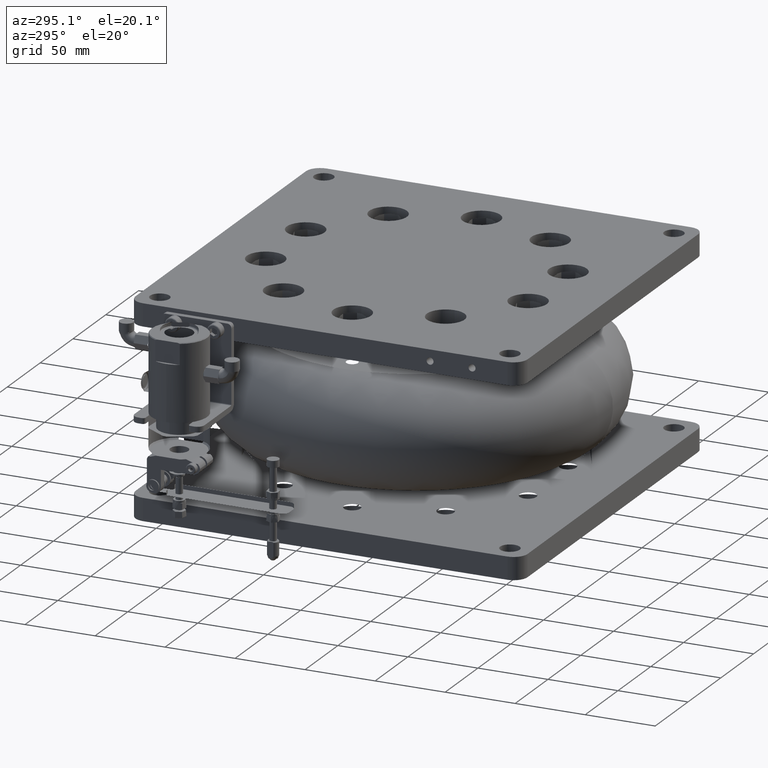
[diagram: clean part render]
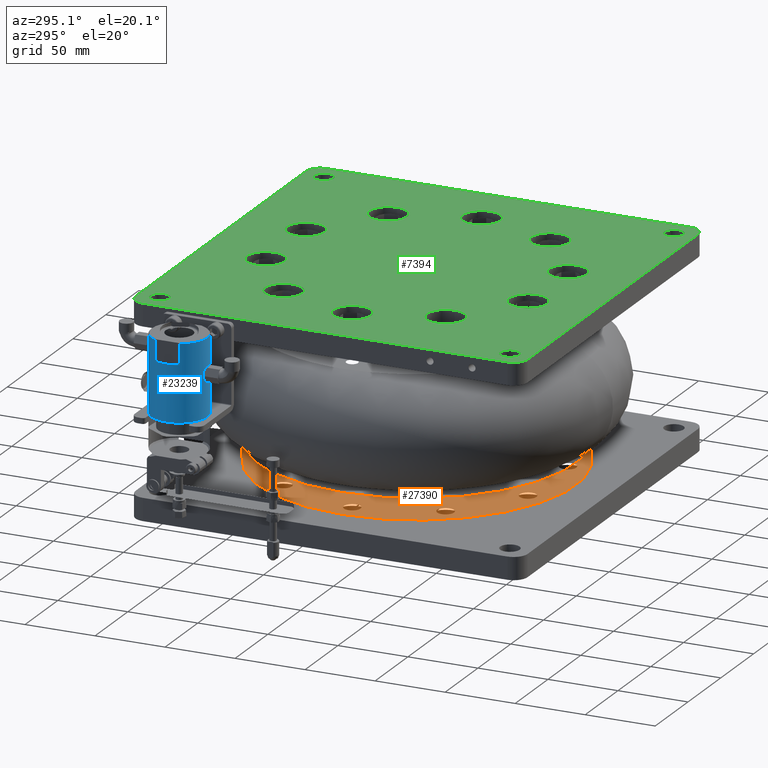
[diagram: same view with three faces highlighted in distinct colors, each labeled with its STEP entity id]
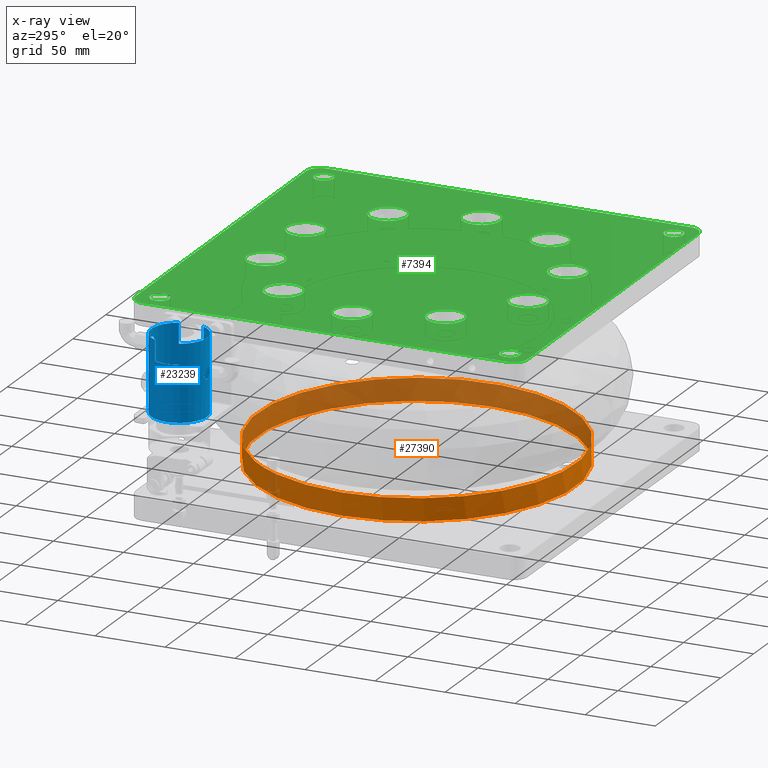
[diagram: x-ray of the same camera — body ghosted, the three highlighted faces saturated]
A machine part, auxiliary view with three faces highlighted in distinct colors.
The next image is the same camera in x-ray (body ghosted, the three faces saturated) — at least one of them is partly hidden behind the body in this view.
Their STEP definitions:

[orange] entity #27390 — the highlighted cylindrical surface (bore or boss wall) has radius 113.5 mm, axis along (0, 0, -1).
#1918 = DIRECTION ( 'NONE',  ( -0.000000000000000000, -0.000000000000000000, 1.000000000000000000 ) ) ;
#3515 = EDGE_CURVE ( 'NONE', #32840, #32840, #19610, .T. ) ;
#5613 = DIRECTION ( 'NONE',  ( 0.000000000000000000, 0.000000000000000000, -1.000000000000000000 ) ) ;
#5970 = DIRECTION ( 'NONE',  ( 0.9510565162951544194, -0.3090169943749448422, 0.000000000000000000 ) ) ;
#7050 = CIRCLE ( 'NONE', #21599, 113.5000000000000142 ) ;
#7877 = AXIS2_PLACEMENT_3D ( 'NONE', #11951, #5613, #21247 ) ;
#8886 = ORIENTED_EDGE ( 'NONE', *, *, #17937, .F. ) ;
#11951 = CARTESIAN_POINT ( 'NONE',  ( 129.3094785136836435, -25.54586439068455661, 103.0000000000000284 ) ) ;
#13182 = VERTEX_POINT ( 'NONE', #28000 ) ;
#14883 = CARTESIAN_POINT ( 'NONE',  ( 129.3094785136836435, -25.54586439068455661, 120.0000000000000284 ) ) ;
#15252 = EDGE_LOOP ( 'NONE', ( #8886 ) ) ;
#17937 = EDGE_CURVE ( 'NONE', #13182, #13182, #7050, .T. ) ;
#18237 = CARTESIAN_POINT ( 'NONE',  ( 237.2543931131836530, -60.61929325224079435, 120.0000000000000284 ) ) ;
#19311 = CARTESIAN_POINT ( 'NONE',  ( 129.3094785136836435, -25.54586439068455661, 104.0000000000000284 ) ) ;
#19523 = ORIENTED_EDGE ( 'NONE', *, *, #3515, .T. ) ;
#19610 = CIRCLE ( 'NONE', #20893, 113.4999999999999858 ) ;
#20842 = FACE_OUTER_BOUND ( 'NONE', #15252, .T. ) ;
#20893 = AXIS2_PLACEMENT_3D ( 'NONE', #14883, #23971, #5970 ) ;
#21247 = DIRECTION ( 'NONE',  ( -1.000000000000000000, 0.000000000000000000, 0.000000000000000000 ) ) ;
#21599 = AXIS2_PLACEMENT_3D ( 'NONE', #19311, #1918, #38052 ) ;
#23629 = FACE_OUTER_BOUND ( 'NONE', #35149, .T. ) ;
#23971 = DIRECTION ( 'NONE',  ( -0.000000000000000000, -0.000000000000000000, 1.000000000000000000 ) ) ;
#27359 = CYLINDRICAL_SURFACE ( 'NONE', #7877, 113.5000000000000142 ) ;
#27390 = ADVANCED_FACE ( 'NONE', ( #23629, #20842 ), #27359, .F. ) ;
#28000 = CARTESIAN_POINT ( 'NONE',  ( 15.80947851368363999, -25.54586439068455661, 104.0000000000000284 ) ) ;
#32840 = VERTEX_POINT ( 'NONE', #18237 ) ;
#35149 = EDGE_LOOP ( 'NONE', ( #19523 ) ) ;
#38052 = DIRECTION ( 'NONE',  ( -1.000000000000000000, 0.000000000000000000, 0.000000000000000000 ) ) ;

[blue] entity #23239 — the highlighted cylindrical surface (bore or boss wall) has radius 20 mm, axis along (0, -0, -1).
#246 = AXIS2_PLACEMENT_3D ( 'NONE', #25185, #9971, #22029 ) ;
#378 = CARTESIAN_POINT ( 'NONE',  ( -42.71337636090161283, 84.35763767239627953, 201.4913226597844869 ) ) ;
#412 = CARTESIAN_POINT ( 'NONE',  ( -41.73364057912300495, 44.47528561621077614, 213.8980328944192593 ) ) ;
#524 = EDGE_CURVE ( 'NONE', #33986, #35339, #31757, .T. ) ;
#538 = CARTESIAN_POINT ( 'NONE',  ( -37.10326381478301982, 84.12989397782691015, 223.2250549149215431 ) ) ;
#546 = CARTESIAN_POINT ( 'NONE',  ( -58.69052148631766386, 55.73633772223320193, 219.9999999999999147 ) ) ;
#615 = CARTESIAN_POINT ( 'NONE',  ( -22.69052148631745069, 73.17193349639590849, 157.5000000000000284 ) ) ;
#636 = CARTESIAN_POINT ( 'NONE',  ( -37.48933558587368964, 44.70836629881532076, 207.5439201609184181 ) ) ;
#690 = AXIS2_PLACEMENT_3D ( 'NONE', #27315, #18037, #32641 ) ;
#727 = CARTESIAN_POINT ( 'NONE',  ( -38.66801867560538852, 84.35765403367744852, 221.5085983921672437 ) ) ;
#792 = LINE ( 'NONE', #25288, #34024 ) ;
#926 = CARTESIAN_POINT ( 'NONE',  ( -39.64607603804890346, 84.43286672502566148, 221.1026379509864057 ) ) ;
#987 = CARTESIAN_POINT ( 'NONE',  ( -44.48620129118064170, 44.81734815125982863, 211.2893865447701103 ) ) ;
#1143 = CARTESIAN_POINT ( 'NONE',  ( -38.23845561644019142, 84.30685130851814790, 201.2042484459634295 ) ) ;
#1173 = CARTESIAN_POINT ( 'NONE',  ( -44.18254971368274653, 44.76027447761348554, 212.0210653916043384 ) ) ;
#1297 = EDGE_CURVE ( 'NONE', #10258, #32994, #24511, .T. ) ;
#1298 = CARTESIAN_POINT ( 'NONE',  ( -39.64917193793936434, 84.43305981090807677, 228.8983783140780588 ) ) ;
#1333 = CARTESIAN_POINT ( 'NONE',  ( -39.64917193793927908, 84.43305981090811940, 201.8983783140781725 ) ) ;
#1531 = ORIENTED_EDGE ( 'NONE', *, *, #10149, .T. ) ;
#1843 = ORIENTED_EDGE ( 'NONE', *, *, #2897, .T. ) ;
#1945 = CARTESIAN_POINT ( 'NONE',  ( -44.16203410019185327, 84.15108942877451170, 227.0055370506561871 ) ) ;
#2250 = ORIENTED_EDGE ( 'NONE', *, *, #524, .T. ) ;
#2274 = CARTESIAN_POINT ( 'NONE',  ( -44.16203410032265708, 84.15108942875143327, 200.0055370503409051 ) ) ;
#2341 = CARTESIAN_POINT ( 'NONE',  ( -41.22135841402613465, 84.45413560931457653, 229.0000000000000000 ) ) ;
#2362 = ORIENTED_EDGE ( 'NONE', *, *, #33543, .T. ) ;
#2546 = CARTESIAN_POINT ( 'NONE',  ( -58.69052148631744359, 73.17193349639589428, 157.4999999999999147 ) ) ;
#2897 = EDGE_CURVE ( 'NONE', #32994, #10258, #18342, .T. ) ;
#3129 = DIRECTION ( 'NONE',  ( 3.469444919707227814E-15, -2.220330437182259400E-16, -1.000000000000000000 ) ) ;
#3214 = CARTESIAN_POINT ( 'NONE',  ( -38.23515705704751610, 44.60181591404385415, 213.2019635833644315 ) ) ;
#3535 = CIRCLE ( 'NONE', #21826, 20.00000000000000355 ) ;
#3561 = CARTESIAN_POINT ( 'NONE',  ( -43.14543671670587344, 44.60177319728560263, 213.2021359408311412 ) ) ;
#3602 = CARTESIAN_POINT ( 'NONE',  ( -36.81825259943586559, 44.83250867268627360, 208.9610086763633490 ) ) ;
#3717 = CARTESIAN_POINT ( 'NONE',  ( -37.20021757840715537, 84.14830757915848380, 200.0241061444475008 ) ) ;
#3784 = EDGE_CURVE ( 'NONE', #14982, #15611, #12690, .T. ) ;
#3791 = CARTESIAN_POINT ( 'NONE',  ( -36.71616067848623288, 44.85293242834364236, 209.4722138257197059 ) ) ;
#3829 = EDGE_LOOP ( 'NONE', ( #11956, #1531, #2250, #32924, #24767, #2362, #19935, #10268 ) ) ;
#4080 = CARTESIAN_POINT ( 'NONE',  ( -37.67473584518334206, 84.22636126847217497, 222.3589091284750623 ) ) ;
#4143 = EDGE_CURVE ( 'NONE', #9349, #9349, #29087, .T. ) ;
#4145 = CARTESIAN_POINT ( 'NONE',  ( -43.70662083835317446, 44.68195377362756915, 207.3592092873595618 ) ) ;
#4147 = AXIS2_PLACEMENT_3D ( 'NONE', #33202, #5753, #15443 ) ;
#4299 = CARTESIAN_POINT ( 'NONE',  ( -37.67473584516244500, 84.22636126846923332, 195.3589091285715256 ) ) ;
#4797 = CIRCLE ( 'NONE', #4147, 20.00000000000000355 ) ;
#5291 = CARTESIAN_POINT ( 'NONE',  ( -44.58932011067977896, 84.07153183535000096, 226.0401647774155549 ) ) ;
#5528 = CARTESIAN_POINT ( 'NONE',  ( -58.69052148631766386, 73.17193349639590849, 219.9999999999999147 ) ) ;
#5611 = FACE_BOUND ( 'NONE', #23470, .T. ) ;
#5708 = DIRECTION ( 'NONE',  ( 3.469444919707227814E-15, -2.220330437182259400E-16, -1.000000000000000000 ) ) ;
#5753 = DIRECTION ( 'NONE',  ( 3.469444919707227814E-15, -2.220330437182259400E-16, -1.000000000000000000 ) ) ;
#6365 = CARTESIAN_POINT ( 'NONE',  ( -39.65069980202030564, 44.47953890953028377, 213.8720656649474563 ) ) ;
#6564 = CARTESIAN_POINT ( 'NONE',  ( -37.67282742583950039, 44.68220157396295633, 212.6389215424405847 ) ) ;
#6586 = EDGE_CURVE ( 'NONE', #22090, #7744, #24835, .T. ) ;
#6682 = CARTESIAN_POINT ( 'NONE',  ( -39.64607603858669194, 84.43286672506701507, 194.1026379506031958 ) ) ;
#6751 = CARTESIAN_POINT ( 'NONE',  ( -40.42438021095235712, 44.45413560931454811, 213.9999999999999147 ) ) ;
#6864 = CARTESIAN_POINT ( 'NONE',  ( -37.48987590438031248, 84.19999126366515441, 200.4567455694477474 ) ) ;
#6937 = CARTESIAN_POINT ( 'NONE',  ( -40.16311186553538448, 44.45944677587495875, 213.9744131329894117 ) ) ;
#7229 = CARTESIAN_POINT ( 'NONE',  ( -36.89583493720115115, 84.09111632761188559, 226.2923317394119920 ) ) ;
#7263 = CARTESIAN_POINT ( 'NONE',  ( -36.69024821162919636, 84.04999776963018121, 197.4719379265742418 ) ) ;
#7744 = VERTEX_POINT ( 'NONE', #15315 ) ;
#7872 = CARTESIAN_POINT ( 'NONE',  ( -44.28410774128209937, 84.12891271551781358, 226.7767221311450498 ) ) ;
#8086 = CARTESIAN_POINT ( 'NONE',  ( -40.69052148631767096, 84.45413560931456232, 220.9999999999999432 ) ) ;
#8129 = EDGE_LOOP ( 'NONE', ( #9129, #29813 ) ) ;
#8395 = FACE_BOUND ( 'NONE', #14842, .T. ) ;
#8674 = B_SPLINE_CURVE_WITH_KNOTS ( 'NONE', 3,
 ( #36924, #33377, #31003, #18388, #30625, #4145, #33579, #24523, #16004, #15622, #28243, #30432, #28059, #15430, #987, #1173, #13052, #3561, #27660, #412, #24712, #36737 ),
 .UNSPECIFIED., .F., .F.,
 ( 4, 2, 2, 2, 2, 2, 2, 2, 2, 2, 4 ),
 ( 0.000000000000000000, 0.1250000000000068556, 0.2500000000000137113, 0.3125000000000142664, 0.3750000000000147660, 0.5000000000000157652, 0.5625000000000163203, 0.6250000000000168754, 0.7500000000000112133, 0.8750000000000056621, 1.000000000000000000 ),
 .UNSPECIFIED. ) ;
#8778 = DIRECTION ( 'NONE',  ( -1.000000000000000000, 0.000000000000000000, -2.775557561562890957E-15 ) ) ;
#9129 = ORIENTED_EDGE ( 'NONE', *, *, #6586, .T. ) ;
#9349 = VERTEX_POINT ( 'NONE', #30672 ) ;
#9452 = CARTESIAN_POINT ( 'NONE',  ( -38.23721149733117386, 84.30671106686328642, 194.7965002845415370 ) ) ;
#9453 = CARTESIAN_POINT ( 'NONE',  ( -43.70778733776887037, 84.22613673849777172, 200.6394312036632925 ) ) ;
#9919 = CARTESIAN_POINT ( 'NONE',  ( -40.69052148631760701, 44.45413560931454811, 206.0000000000000000 ) ) ;
#9971 = DIRECTION ( 'NONE',  ( 3.469444919707227814E-15, -2.220330437182259400E-16, -1.000000000000000000 ) ) ;
#10006 = CARTESIAN_POINT ( 'NONE',  ( -36.71624277707697814, 84.05535555563346861, 225.5284132796443259 ) ) ;
#10149 = EDGE_CURVE ( 'NONE', #31132, #33986, #14028, .T. ) ;
#10202 = CARTESIAN_POINT ( 'NONE',  ( -40.15952264235032487, 84.45413560931456232, 220.9999999999999432 ) ) ;
#10258 = VERTEX_POINT ( 'NONE', #8086 ) ;
#10268 = ORIENTED_EDGE ( 'NONE', *, *, #10497, .T. ) ;
#10402 = CARTESIAN_POINT ( 'NONE',  ( -40.69052148631769938, 84.45413560931456232, 228.9999999999999432 ) ) ;
#10497 = EDGE_CURVE ( 'NONE', #11238, #38550, #39071, .T. ) ;
#10975 = CARTESIAN_POINT ( 'NONE',  ( -44.56337276869611230, 84.07564708974926759, 196.9632730238231204 ) ) ;
#11238 = VERTEX_POINT ( 'NONE', #12478 ) ;
#11345 = CARTESIAN_POINT ( 'NONE',  ( -43.89383870563046486, 84.19955705926231815, 195.5466461645920333 ) ) ;
#11420 = ORIENTED_EDGE ( 'NONE', *, *, #36120, .T. ) ;
#11641 = DIRECTION ( 'NONE',  ( -3.469444919707227814E-15, 2.220330437182259400E-16, 1.000000000000000000 ) ) ;
#11893 = B_SPLINE_CURVE_WITH_KNOTS ( 'NONE', 3,
 ( #33343, #15397, #27442, #378, #36510, #9453, #14325, #2274, #19657, #29328, #35635, #32480, #26360, #10975, #20248, #38389, #11345, #31693, #23414, #32281, #14508, #16699 ),
 .UNSPECIFIED., .F., .F.,
 ( 4, 2, 2, 2, 2, 2, 2, 2, 2, 2, 4 ),
 ( 0.000000000000000000, 0.1250000000000072720, 0.2500000000000145439, 0.3125000000000179856, 0.3750000000000214828, 0.5000000000000224265, 0.5625000000000196509, 0.6250000000000167644, 0.7500000000000112133, 0.8750000000000055511, 1.000000000000000000 ),
 .UNSPECIFIED. ) ;
#11956 = ORIENTED_EDGE ( 'NONE', *, *, #29024, .T. ) ;
#12322 = CARTESIAN_POINT ( 'NONE',  ( -40.69052148631763544, 44.45413560931454811, 213.9999999999999716 ) ) ;
#12406 = CARTESIAN_POINT ( 'NONE',  ( -40.69052148631767096, 84.45413560931456232, 220.9999999999999432 ) ) ;
#12478 = CARTESIAN_POINT ( 'NONE',  ( -58.69052148631770649, 55.73633772223320193, 234.4999999999998863 ) ) ;
#12508 = CARTESIAN_POINT ( 'NONE',  ( -37.19987066876719695, 44.76002599463225096, 207.9764909613760722 ) ) ;
#12623 = CARTESIAN_POINT ( 'NONE',  ( -40.69052148631757859, 84.45413560931456232, 193.9999999999999432 ) ) ;
#12690 = CIRCLE ( 'NONE', #25936, 20.00000000000000355 ) ;
#12701 = CARTESIAN_POINT ( 'NONE',  ( -38.66836523945702453, 44.55054931479745761, 206.5082095465520808 ) ) ;
#12797 = CARTESIAN_POINT ( 'NONE',  ( -36.79197075274093010, 84.07159369861292930, 223.9579507648968786 ) ) ;
#12862 = DIRECTION ( 'NONE',  ( -3.469444919707227814E-15, 2.220330437182259400E-16, 1.000000000000000000 ) ) ;
#12870 = ORIENTED_EDGE ( 'NONE', *, *, #18717, .T. ) ;
#12982 = VERTEX_POINT ( 'NONE', #38915 ) ;
#12991 = CARTESIAN_POINT ( 'NONE',  ( -37.50898806855577305, 84.20000177477757575, 222.5604717525251317 ) ) ;
#12994 = CARTESIAN_POINT ( 'NONE',  ( -40.69052148631765675, 64.45413560931454811, 219.9999999999999716 ) ) ;
#13052 = CARTESIAN_POINT ( 'NONE',  ( -43.89388216606430149, 44.70872139531577716, 212.4532962906420437 ) ) ;
#13207 = CARTESIAN_POINT ( 'NONE',  ( -38.66855403596539276, 84.35774002571723429, 201.4918915703907487 ) ) ;
#13368 = CARTESIAN_POINT ( 'NONE',  ( -40.16016817921214965, 84.45413560931456232, 229.0000000000000568 ) ) ;
#14002 = CARTESIAN_POINT ( 'NONE',  ( -43.89383870544001098, 84.19955705928953194, 222.5466461645519871 ) ) ;
#14028 = LINE ( 'NONE', #2546, #25405 ) ;
#14278 = B_SPLINE_CURVE_WITH_KNOTS ( 'NONE', 3,
 ( #12623, #18556, #6682, #28027, #9452, #4299, #19320, #16161, #37082, #31360, #16345, #36509, #7263, #28397, #15970, #24681, #28215, #3717, #6864, #1143, #13207, #1333, #21519, #33547 ),
 .UNSPECIFIED., .F., .F.,
 ( 4, 2, 2, 2, 2, 2, 2, 2, 2, 2, 2, 4 ),
 ( 0.000000000000000000, 0.1249999999999830413, 0.2499999999999660827, 0.3124999999999600320, 0.3437499999999602540, 0.3749999999999604205, 0.4999999999999678035, 0.5624999999999715783, 0.6249999999999752420, 0.7499999999999834577, 0.8749999999999917843, 1.000000000000000000 ),
 .UNSPECIFIED. ) ;
#14325 = CARTESIAN_POINT ( 'NONE',  ( -43.87360672222511937, 84.19975178038333752, 200.4375400498087458 ) ) ;
#14386 = CARTESIAN_POINT ( 'NONE',  ( -41.73358410968393173, 84.43298797121380517, 221.1019560649527023 ) ) ;
#14508 = CARTESIAN_POINT ( 'NONE',  ( -41.22178001231353051, 84.45413560931451968, 193.9999999999998863 ) ) ;
#14842 = EDGE_LOOP ( 'NONE', ( #12870, #11420 ) ) ;
#14982 = VERTEX_POINT ( 'NONE', #26547 ) ;
#15274 = CARTESIAN_POINT ( 'NONE',  ( -37.21896937474678424, 44.75718964831231261, 212.0054401228511836 ) ) ;
#15315 = CARTESIAN_POINT ( 'NONE',  ( -40.69052148631760701, 44.45413560931454811, 206.0000000000000000 ) ) ;
#15397 = CARTESIAN_POINT ( 'NONE',  ( -41.22135841366342390, 84.45413560931456232, 202.0000000000000000 ) ) ;
#15430 = CARTESIAN_POINT ( 'NONE',  ( -44.56323947947786479, 44.83259774442850443, 211.0372162233736333 ) ) ;
#15443 = DIRECTION ( 'NONE',  ( -1.000000000000000000, 0.000000000000000000, -2.775557561562890957E-15 ) ) ;
#15473 = CARTESIAN_POINT ( 'NONE',  ( -37.09715052411264935, 44.77931860708849143, 211.7771929240939812 ) ) ;
#15611 = VERTEX_POINT ( 'NONE', #37181 ) ;
#15622 = CARTESIAN_POINT ( 'NONE',  ( -44.58933607670505950, 44.83674021744936056, 208.9596905241581624 ) ) ;
#15639 = LINE ( 'NONE', #615, #16031 ) ;
#15660 = CARTESIAN_POINT ( 'NONE',  ( -36.89561127997431100, 44.81719833062753366, 208.7083246139378332 ) ) ;
#15699 = CARTESIAN_POINT ( 'NONE',  ( -22.69052148631771360, 73.17193349639592270, 234.5000000000000000 ) ) ;
#15850 = CARTESIAN_POINT ( 'NONE',  ( -38.23804145315978076, 44.60146983064350934, 206.7960390696852073 ) ) ;
#15970 = CARTESIAN_POINT ( 'NONE',  ( -36.71624277707685735, 84.05535555563348282, 198.5284132795739538 ) ) ;
#16004 = CARTESIAN_POINT ( 'NONE',  ( -44.28379658438235822, 44.77930109000089232, 208.2226186908777379 ) ) ;
#16031 = VECTOR ( 'NONE', #20987, 1000.000000000000000 ) ;
#16132 = CARTESIAN_POINT ( 'NONE',  ( -37.20021757827461784, 84.14830757913358639, 227.0241061440358123 ) ) ;
#16135 = DIRECTION ( 'NONE',  ( -1.000000000000000000, 0.000000000000000000, -2.775557561562890957E-15 ) ) ;
#16161 = CARTESIAN_POINT ( 'NONE',  ( -37.29268528207139610, 84.16352564318654572, 195.8839552029493234 ) ) ;
#16314 = CARTESIAN_POINT ( 'NONE',  ( -37.48987590485789667, 84.19999126373328124, 227.4567455696472109 ) ) ;
#16345 = CARTESIAN_POINT ( 'NONE',  ( -37.04778015503276123, 84.11966752622636534, 196.3422289525659892 ) ) ;
#16513 = CARTESIAN_POINT ( 'NONE',  ( -40.69052148631767096, 84.45413560931456232, 220.9999999999999432 ) ) ;
#16699 = CARTESIAN_POINT ( 'NONE',  ( -40.69052148631757859, 84.45413560931456232, 193.9999999999999432 ) ) ;
#16963 = CARTESIAN_POINT ( 'NONE',  ( -44.56337276869619046, 84.07564708974928180, 223.9632730237095757 ) ) ;
#17293 = FACE_OUTER_BOUND ( 'NONE', #3829, .T. ) ;
#17349 = CARTESIAN_POINT ( 'NONE',  ( -44.48637962848842875, 84.09088863495216515, 223.7111200125624748 ) ) ;
#18037 = DIRECTION ( 'NONE',  ( -3.469444919707227814E-15, 2.220330437182259400E-16, 1.000000000000000000 ) ) ;
#18074 = FACE_OUTER_BOUND ( 'NONE', #26003, .T. ) ;
#18342 = B_SPLINE_CURVE_WITH_KNOTS ( 'NONE', 3,
 ( #25845, #2341, #22901, #34930, #20122, #26244, #38267, #1945, #7872, #5291, #19931, #31960, #20316, #16963, #17349, #29000, #14002, #29394, #26050, #14386, #38451, #12406 ),
 .UNSPECIFIED., .F., .F.,
 ( 4, 2, 2, 2, 2, 2, 2, 2, 2, 2, 4 ),
 ( 0.000000000000000000, 0.1249999999999906464, 0.2499999999999812927, 0.3124999999999789058, 0.3749999999999764633, 0.4999999999999723554, 0.5624999999999735767, 0.6249999999999747979, 0.7499999999999831246, 0.8749999999999915623, 1.000000000000000000 ),
 .UNSPECIFIED. ) ;
#18388 = CARTESIAN_POINT ( 'NONE',  ( -42.71225732179073731, 44.55052849790778424, 206.5080934248237838 ) ) ;
#18434 = CARTESIAN_POINT ( 'NONE',  ( -39.39789132194707832, 44.49444798989657812, 213.7946123717029820 ) ) ;
#18556 = CARTESIAN_POINT ( 'NONE',  ( -40.15952264196228327, 84.45413560931457653, 193.9999999999999716 ) ) ;
#18626 = CARTESIAN_POINT ( 'NONE',  ( -36.69061919308364850, 44.85819772274161465, 209.7326752457568944 ) ) ;
#18717 = EDGE_CURVE ( 'NONE', #12982, #28948, #14278, .T. ) ;
#18898 = CARTESIAN_POINT ( 'NONE',  ( -37.22597050468052515, 84.15187079571872175, 222.9953062719320371 ) ) ;
#19003 = CARTESIAN_POINT ( 'NONE',  ( -39.64906801658854363, 44.47521577013418437, 206.1016419093104446 ) ) ;
#19320 = CARTESIAN_POINT ( 'NONE',  ( -37.50898806852456602, 84.20000177477254510, 195.5604717526697129 ) ) ;
#19657 = CARTESIAN_POINT ( 'NONE',  ( -44.28410774128202831, 84.12891271551781358, 199.7767221311450498 ) ) ;
#19813 = CARTESIAN_POINT ( 'NONE',  ( -40.69052148631760701, 84.45413560931456232, 201.9999999999999432 ) ) ;
#19931 = CARTESIAN_POINT ( 'NONE',  ( -44.69057362135973932, 84.05004290955942281, 225.5290300941171324 ) ) ;
#19935 = ORIENTED_EDGE ( 'NONE', *, *, #29239, .T. ) ;
#20122 = CARTESIAN_POINT ( 'NONE',  ( -43.14491493176005577, 84.30658231741239206, 228.2027736271686251 ) ) ;
#20248 = CARTESIAN_POINT ( 'NONE',  ( -44.48637962848853533, 84.09088863495212252, 196.7111200126381050 ) ) ;
#20316 = CARTESIAN_POINT ( 'NONE',  ( -44.66508420618485786, 84.05529733555147232, 224.4739139051993391 ) ) ;
#20987 = DIRECTION ( 'NONE',  ( 3.469444919707227814E-15, -2.220330437182259400E-16, -1.000000000000000000 ) ) ;
#21519 = CARTESIAN_POINT ( 'NONE',  ( -40.16016817921209281, 84.45413560931456232, 201.9999999999999716 ) ) ;
#21692 = CARTESIAN_POINT ( 'NONE',  ( -37.04778015503285360, 84.11966752622639376, 223.3422289525424560 ) ) ;
#21826 = AXIS2_PLACEMENT_3D ( 'NONE', #32762, #5708, #29816 ) ;
#21885 = DIRECTION ( 'NONE',  ( 3.469444919707227814E-15, -2.220330437182259400E-16, -1.000000000000000000 ) ) ;
#22029 = DIRECTION ( 'NONE',  ( -1.000000000000000000, 0.000000000000000000, -2.775557561562890957E-15 ) ) ;
#22066 = CARTESIAN_POINT ( 'NONE',  ( -36.81842276043692408, 84.07579624494191251, 226.0396297240771162 ) ) ;
#22090 = VERTEX_POINT ( 'NONE', #38952 ) ;
#22262 = CARTESIAN_POINT ( 'NONE',  ( -37.29268528210253919, 84.16352564319187479, 222.8839552028047706 ) ) ;
#22901 = CARTESIAN_POINT ( 'NONE',  ( -41.73374736996842671, 84.43294978769480963, 228.8978010221006514 ) ) ;
#22918 = EDGE_CURVE ( 'NONE', #35339, #14982, #15639, .T. ) ;
#23239 = ADVANCED_FACE ( 'NONE', ( #5611, #8395, #18074, #38801, #17293 ), #32492, .T. ) ;
#23414 = CARTESIAN_POINT ( 'NONE',  ( -42.71561153587597914, 84.35744014966454074, 194.5097803247637955 ) ) ;
#23470 = EDGE_LOOP ( 'NONE', ( #34934, #1843 ) ) ;
#24179 = CARTESIAN_POINT ( 'NONE',  ( -38.66507929204863814, 44.55092796973985969, 213.4896480442159543 ) ) ;
#24373 = CARTESIAN_POINT ( 'NONE',  ( -36.69032757952645341, 44.85825724810194970, 210.5286360419453615 ) ) ;
#24511 = B_SPLINE_CURVE_WITH_KNOTS ( 'NONE', 3,
 ( #16513, #10202, #926, #727, #37051, #4080, #12991, #22262, #18898, #538, #21692, #12797, #30937, #34286, #10006, #22066, #7229, #16132, #16314, #28365, #24649, #1298, #13368, #10402 ),
 .UNSPECIFIED., .F., .F.,
 ( 4, 2, 2, 2, 2, 2, 2, 2, 2, 2, 2, 4 ),
 ( 0.000000000000000000, 0.1250000000000019984, 0.2500000000000039968, 0.3125000000000028866, 0.3437500000000047740, 0.3750000000000066613, 0.5000000000000088818, 0.5625000000000099920, 0.6250000000000111022, 0.7500000000000074385, 0.8750000000000037748, 1.000000000000000000 ),
 .UNSPECIFIED. ) ;
#24523 = CARTESIAN_POINT ( 'NONE',  ( -44.16152882819095282, 44.75709118475872828, 207.9935503266273145 ) ) ;
#24649 = CARTESIAN_POINT ( 'NONE',  ( -38.66855403596558460, 84.35774002571726271, 228.4918915703908340 ) ) ;
#24681 = CARTESIAN_POINT ( 'NONE',  ( -36.81842276043680329, 84.07579624494188408, 199.0396297240066303 ) ) ;
#24712 = CARTESIAN_POINT ( 'NONE',  ( -41.22180983285762323, 44.45413560931454811, 213.9999999999999716 ) ) ;
#24758 = CARTESIAN_POINT ( 'NONE',  ( -40.16011315900338730, 44.45413560931454100, 206.0000000000000853 ) ) ;
#24767 = ORIENTED_EDGE ( 'NONE', *, *, #3784, .T. ) ;
#24835 = B_SPLINE_CURVE_WITH_KNOTS ( 'NONE', 3,
 ( #12322, #6751, #6937, #6365, #18434, #24179, #3214, #6564, #33421, #15274, #15473, #27516, #24373, #18626, #3791, #3602, #15660, #12508, #636, #15850, #12701, #19003, #24758, #9919 ),
 .UNSPECIFIED., .F., .F.,
 ( 4, 2, 2, 2, 2, 2, 2, 2, 2, 2, 2, 4 ),
 ( 0.000000000000000000, 0.06249999999999840405, 0.1249999999999968081, 0.2499999999999936162, 0.3124999999999920064, 0.3749999999999904521, 0.4999999999999938938, 0.5624999999999924505, 0.6249999999999908962, 0.7499999999999938938, 0.8749999999999970024, 1.000000000000000000 ),
 .UNSPECIFIED. ) ;
#25185 = CARTESIAN_POINT ( 'NONE',  ( -40.69052148631770649, 64.45413560931454811, 234.5000000000000000 ) ) ;
#25288 = CARTESIAN_POINT ( 'NONE',  ( -22.69052148631743648, 55.73633772223320193, 157.5000000000000284 ) ) ;
#25405 = VECTOR ( 'NONE', #11641, 1000.000000000000000 ) ;
#25649 = CARTESIAN_POINT ( 'NONE',  ( -40.69052148631769938, 84.45413560931456232, 228.9999999999999432 ) ) ;
#25845 = CARTESIAN_POINT ( 'NONE',  ( -40.69052148631769938, 84.45413560931456232, 228.9999999999999432 ) ) ;
#25936 = AXIS2_PLACEMENT_3D ( 'NONE', #12994, #21885, #16135 ) ;
#26003 = EDGE_LOOP ( 'NONE', ( #28791 ) ) ;
#26050 = CARTESIAN_POINT ( 'NONE',  ( -42.71561153597175320, 84.35744014965715110, 221.5097803247637387 ) ) ;
#26244 = CARTESIAN_POINT ( 'NONE',  ( -43.70778733768125335, 84.22613673851033411, 227.6394312038734142 ) ) ;
#26360 = CARTESIAN_POINT ( 'NONE',  ( -44.66508420618477260, 84.05529733555145810, 197.4739139053128270 ) ) ;
#26547 = CARTESIAN_POINT ( 'NONE',  ( -22.69052148631766030, 73.17193349639592270, 220.0000000000000568 ) ) ;
#27315 = CARTESIAN_POINT ( 'NONE',  ( -40.69052148631752175, 64.45413560931453389, 179.9999999999999716 ) ) ;
#27402 = AXIS2_PLACEMENT_3D ( 'NONE', #29341, #38597, #8778 ) ;
#27442 = CARTESIAN_POINT ( 'NONE',  ( -41.73374736980495214, 84.43294978770735781, 201.8978010220187400 ) ) ;
#27516 = CARTESIAN_POINT ( 'NONE',  ( -36.79161628068111867, 44.83675826243489126, 211.0400050481216567 ) ) ;
#27577 = CARTESIAN_POINT ( 'NONE',  ( -58.69052148631772070, 73.17193349639589428, 234.4999999999999147 ) ) ;
#27660 = CARTESIAN_POINT ( 'NONE',  ( -42.71571457994512144, 44.55084097193751802, 213.4901644720961542 ) ) ;
#27803 = CARTESIAN_POINT ( 'NONE',  ( -22.69052148631770649, 55.73633772223321614, 234.5000000000000000 ) ) ;
#28027 = CARTESIAN_POINT ( 'NONE',  ( -38.66801867506741530, 84.35765403363608073, 194.5085983925503967 ) ) ;
#28059 = CARTESIAN_POINT ( 'NONE',  ( -44.66500783294834775, 44.85295832022934093, 210.5266464069755159 ) ) ;
#28215 = CARTESIAN_POINT ( 'NONE',  ( -36.89583493713473672, 84.09111632759940846, 199.2923317392060767 ) ) ;
#28243 = CARTESIAN_POINT ( 'NONE',  ( -44.69065606523583511, 44.85824513785357226, 209.4716581667128992 ) ) ;
#28365 = CARTESIAN_POINT ( 'NONE',  ( -38.23845561596272802, 84.30685130845000685, 228.2042484457640796 ) ) ;
#28397 = CARTESIAN_POINT ( 'NONE',  ( -36.69065939819915201, 84.05008170271872814, 198.2679418481955054 ) ) ;
#28791 = ORIENTED_EDGE ( 'NONE', *, *, #4143, .T. ) ;
#28948 = VERTEX_POINT ( 'NONE', #19813 ) ;
#29000 = CARTESIAN_POINT ( 'NONE',  ( -44.18270605390083006, 84.14796917841479740, 222.9791578063125996 ) ) ;
#29024 = EDGE_CURVE ( 'NONE', #38550, #31132, #4797, .T. ) ;
#29087 = CIRCLE ( 'NONE', #690, 20.00000000000000355 ) ;
#29239 = EDGE_CURVE ( 'NONE', #38880, #11238, #3535, .T. ) ;
#29328 = CARTESIAN_POINT ( 'NONE',  ( -44.58932011067967949, 84.07153183534997254, 199.0401647774155549 ) ) ;
#29341 = CARTESIAN_POINT ( 'NONE',  ( -40.69052148631744359, 64.45413560931453389, 157.4999999999999716 ) ) ;
#29394 = CARTESIAN_POINT ( 'NONE',  ( -43.14537380899779606, 84.30650598459442335, 221.7978151841593615 ) ) ;
#29813 = ORIENTED_EDGE ( 'NONE', *, *, #33469, .T. ) ;
#29816 = DIRECTION ( 'NONE',  ( -1.000000000000000000, 0.000000000000000000, -2.775557561562890957E-15 ) ) ;
#29821 = VECTOR ( 'NONE', #3129, 1000.000000000000000 ) ;
#30193 = CARTESIAN_POINT ( 'NONE',  ( -58.69052148631744359, 55.73633772223318061, 157.4999999999999147 ) ) ;
#30432 = CARTESIAN_POINT ( 'NONE',  ( -44.69045373466349247, 44.85820383730172267, 210.2665259834240601 ) ) ;
#30625 = CARTESIAN_POINT ( 'NONE',  ( -43.14289722532370774, 44.60142867514530707, 206.7955931787722079 ) ) ;
#30672 = CARTESIAN_POINT ( 'NONE',  ( -60.69052148631752175, 64.45413560931453389, 179.9999999999999147 ) ) ;
#30937 = CARTESIAN_POINT ( 'NONE',  ( -36.69024821162922478, 84.04999776963018121, 224.4719379264803649 ) ) ;
#31003 = CARTESIAN_POINT ( 'NONE',  ( -41.73332463337946052, 44.47530798029298893, 206.1021433296773182 ) ) ;
#31132 = VERTEX_POINT ( 'NONE', #5528 ) ;
#31360 = CARTESIAN_POINT ( 'NONE',  ( -37.10326381476482283, 84.12989397782358481, 196.2250549150057850 ) ) ;
#31693 = CARTESIAN_POINT ( 'NONE',  ( -43.14537380880717876, 84.30650598462162293, 194.7978151841192869 ) ) ;
#31757 = CIRCLE ( 'NONE', #246, 20.00000000000000355 ) ;
#31960 = CARTESIAN_POINT ( 'NONE',  ( -44.69049525144480839, 84.05005890675080593, 224.7340678353639021 ) ) ;
#32281 = CARTESIAN_POINT ( 'NONE',  ( -41.73358410977959210, 84.43298797120640131, 194.1019560649526738 ) ) ;
#32480 = CARTESIAN_POINT ( 'NONE',  ( -44.69049525144471602, 84.05005890675079172, 197.7340678354395891 ) ) ;
#32492 = CYLINDRICAL_SURFACE ( 'NONE', #27402, 20.00000000000000355 ) ;
#32641 = DIRECTION ( 'NONE',  ( -1.000000000000000000, 0.000000000000000000, -2.775557561562890957E-15 ) ) ;
#32762 = CARTESIAN_POINT ( 'NONE',  ( -40.69052148631770649, 64.45413560931454811, 234.4999999999999716 ) ) ;
#32924 = ORIENTED_EDGE ( 'NONE', *, *, #22918, .T. ) ;
#32994 = VERTEX_POINT ( 'NONE', #25649 ) ;
#33202 = CARTESIAN_POINT ( 'NONE',  ( -40.69052148631765675, 64.45413560931454811, 219.9999999999999716 ) ) ;
#33343 = CARTESIAN_POINT ( 'NONE',  ( -40.69052148631760701, 84.45413560931456232, 201.9999999999999432 ) ) ;
#33377 = CARTESIAN_POINT ( 'NONE',  ( -41.22106984675747299, 44.45413560931454811, 206.0000000000000000 ) ) ;
#33421 = CARTESIAN_POINT ( 'NONE',  ( -37.50715799045434551, 44.70856519194750689, 212.4371529863994965 ) ) ;
#33469 = EDGE_CURVE ( 'NONE', #7744, #22090, #8674, .T. ) ;
#33543 = EDGE_CURVE ( 'NONE', #15611, #38880, #792, .T. ) ;
#33547 = CARTESIAN_POINT ( 'NONE',  ( -40.69052148631760701, 84.45413560931456232, 201.9999999999999432 ) ) ;
#33579 = CARTESIAN_POINT ( 'NONE',  ( -43.87268576889702842, 44.70836944264123503, 207.5612263096914489 ) ) ;
#33986 = VERTEX_POINT ( 'NONE', #27577 ) ;
#34024 = VECTOR ( 'NONE', #12862, 1000.000000000000000 ) ;
#34286 = CARTESIAN_POINT ( 'NONE',  ( -36.69065939819925859, 84.05008170271872814, 225.2679418482424296 ) ) ;
#34930 = CARTESIAN_POINT ( 'NONE',  ( -42.71337636073833011, 84.35763767240887034, 228.4913226597023765 ) ) ;
#34934 = ORIENTED_EDGE ( 'NONE', *, *, #1297, .T. ) ;
#35339 = VERTEX_POINT ( 'NONE', #15699 ) ;
#35635 = CARTESIAN_POINT ( 'NONE',  ( -44.69057362135961853, 84.05004290955940860, 198.5290300939658152 ) ) ;
#36120 = EDGE_CURVE ( 'NONE', #28948, #12982, #11893, .T. ) ;
#36509 = CARTESIAN_POINT ( 'NONE',  ( -36.79197075274083062, 84.07159369861294351, 196.9579507648028027 ) ) ;
#36510 = CARTESIAN_POINT ( 'NONE',  ( -43.14491493158448776, 84.30658231743746001, 201.2027736275888685 ) ) ;
#36737 = CARTESIAN_POINT ( 'NONE',  ( -40.69052148631763544, 44.45413560931454811, 213.9999999999999716 ) ) ;
#36924 = CARTESIAN_POINT ( 'NONE',  ( -40.69052148631760701, 44.45413560931454811, 206.0000000000000000 ) ) ;
#37051 = CARTESIAN_POINT ( 'NONE',  ( -38.23721149728967816, 84.30671106685731786, 221.7965002847341793 ) ) ;
#37082 = CARTESIAN_POINT ( 'NONE',  ( -37.22597050465198976, 84.15187079571371953, 195.9953062720645676 ) ) ;
#37181 = CARTESIAN_POINT ( 'NONE',  ( -22.69052148631764965, 55.73633772223321614, 220.0000000000000284 ) ) ;
#38267 = CARTESIAN_POINT ( 'NONE',  ( -43.87360672209400292, 84.19975178040449748, 227.4375400501239426 ) ) ;
#38389 = CARTESIAN_POINT ( 'NONE',  ( -44.18270605390029004, 84.14796917841492530, 195.9791578061612825 ) ) ;
#38451 = CARTESIAN_POINT ( 'NONE',  ( -41.22178001221760724, 84.45413560931454811, 220.9999999999998010 ) ) ;
#38550 = VERTEX_POINT ( 'NONE', #546 ) ;
#38597 = DIRECTION ( 'NONE',  ( 3.469444919707227814E-15, -2.220330437182259400E-16, -1.000000000000000000 ) ) ;
#38801 = FACE_BOUND ( 'NONE', #8129, .T. ) ;
#38880 = VERTEX_POINT ( 'NONE', #27803 ) ;
#38915 = CARTESIAN_POINT ( 'NONE',  ( -40.69052148631757859, 84.45413560931456232, 193.9999999999999432 ) ) ;
#38952 = CARTESIAN_POINT ( 'NONE',  ( -40.69052148631763544, 44.45413560931454811, 213.9999999999999716 ) ) ;
#39071 = LINE ( 'NONE', #30193, #29821 ) ;

[green] entity #7394 — the highlighted planar face has unit normal (0, 0, -1).
#188 = CIRCLE ( 'NONE', #14681, 13.50000000000001243 ) ;
#191 = EDGE_CURVE ( 'NONE', #12838, #4894, #37451, .T. ) ;
#353 = CIRCLE ( 'NONE', #16111, 13.49999999999999822 ) ;
#396 = FACE_BOUND ( 'NONE', #14476, .T. ) ;
#644 = EDGE_LOOP ( 'NONE', ( #19771 ) ) ;
#803 = EDGE_LOOP ( 'NONE', ( #11214 ) ) ;
#882 = EDGE_LOOP ( 'NONE', ( #38914 ) ) ;
#962 = DIRECTION ( 'NONE',  ( 1.000000000000000000, 0.000000000000000000, 0.000000000000000000 ) ) ;
#1259 = CARTESIAN_POINT ( 'NONE',  ( -0.6905214863174293782, -165.5458643906854661, 239.0000000000000568 ) ) ;
#1306 = CARTESIAN_POINT ( 'NONE',  ( 261.3094785136825635, 99.45413560931456232, 239.0000000000000568 ) ) ;
#1551 = EDGE_CURVE ( 'NONE', #36589, #36589, #12890, .T. ) ;
#1637 = DIRECTION ( 'NONE',  ( 1.000000000000000000, 0.000000000000000000, -0.000000000000000000 ) ) ;
#1799 = AXIS2_PLACEMENT_3D ( 'NONE', #18239, #21220, #33241 ) ;
#2120 = DIRECTION ( 'NONE',  ( 0.000000000000000000, 1.000000000000000000, -0.000000000000000000 ) ) ;
#2197 = DIRECTION ( 'NONE',  ( 0.000000000000000000, 0.000000000000000000, -1.000000000000000000 ) ) ;
#2311 = LINE ( 'NONE', #38627, #22978 ) ;
#2368 = EDGE_LOOP ( 'NONE', ( #14784 ) ) ;
#2456 = DIRECTION ( 'NONE',  ( 1.000000000000000000, 0.000000000000000000, 0.000000000000000000 ) ) ;
#2830 = ORIENTED_EDGE ( 'NONE', *, *, #20383, .T. ) ;
#3152 = DIRECTION ( 'NONE',  ( -1.000000000000000000, 0.000000000000000000, -0.000000000000000000 ) ) ;
#3584 = AXIS2_PLACEMENT_3D ( 'NONE', #36216, #20817, #14903 ) ;
#3980 = EDGE_CURVE ( 'NONE', #15283, #15283, #22786, .T. ) ;
#4076 = VERTEX_POINT ( 'NONE', #17256 ) ;
#4086 = CARTESIAN_POINT ( 'NONE',  ( 112.3713045677491209, 68.13320246438253491, 239.0000000000000568 ) ) ;
#4092 = CIRCLE ( 'NONE', #14211, 13.49999999999999822 ) ;
#4099 = EDGE_CURVE ( 'NONE', #5621, #4894, #34832, .T. ) ;
#4567 = ORIENTED_EDGE ( 'NONE', *, *, #14412, .F. ) ;
#4855 = DIRECTION ( 'NONE',  ( 0.000000000000000000, 0.000000000000000000, 1.000000000000000000 ) ) ;
#4894 = VERTEX_POINT ( 'NONE', #19306 ) ;
#5146 = CARTESIAN_POINT ( 'NONE',  ( 4.309478513682574174, -150.5458643906854661, 239.0000000000000568 ) ) ;
#5199 = EDGE_LOOP ( 'NONE', ( #38802 ) ) ;
#5337 = CARTESIAN_POINT ( 'NONE',  ( -0.6905214863174302664, -155.5458643906854661, 239.0000000000000568 ) ) ;
#5356 = ORIENTED_EDGE ( 'NONE', *, *, #31166, .T. ) ;
#5621 = VERTEX_POINT ( 'NONE', #12382 ) ;
#5692 = DIRECTION ( 'NONE',  ( 1.000000000000000000, 0.000000000000000000, 0.000000000000000000 ) ) ;
#5803 = CARTESIAN_POINT ( 'NONE',  ( 49.62130456775388865, -83.44271174149834280, 239.0000000000000568 ) ) ;
#6111 = VERTEX_POINT ( 'NONE', #18173 ) ;
#6698 = FACE_BOUND ( 'NONE', #39002, .T. ) ;
#6880 = FACE_BOUND ( 'NONE', #644, .T. ) ;
#6923 = CARTESIAN_POINT ( 'NONE',  ( 98.87130456774912091, 68.13320246438253491, 239.0000000000000568 ) ) ;
#7222 = AXIS2_PLACEMENT_3D ( 'NONE', #9184, #36998, #15308 ) ;
#7234 = VERTEX_POINT ( 'NONE', #7428 ) ;
#7394 = ADVANCED_FACE ( 'NONE', ( #15211, #9084, #36525, #6880, #21738, #18171, #21151, #396, #24697, #30984, #6698, #21342, #18758, #36333, #33360 ), #33566, .F. ) ;
#7428 = CARTESIAN_POINT ( 'NONE',  ( 173.2476524596130787, 68.13320246438424022, 239.0000000000000568 ) ) ;
#7617 = CIRCLE ( 'NONE', #24059, 13.49999999999999822 ) ;
#7688 = EDGE_CURVE ( 'NONE', #12838, #25188, #21250, .T. ) ;
#7967 = EDGE_CURVE ( 'NONE', #14114, #4076, #37282, .T. ) ;
#7974 = DIRECTION ( 'NONE',  ( 0.000000000000000000, 0.000000000000000000, -1.000000000000000000 ) ) ;
#8079 = CARTESIAN_POINT ( 'NONE',  ( 11.30947851368257240, 99.45413560931456232, 239.0000000000000568 ) ) ;
#8384 = CARTESIAN_POINT ( 'NONE',  ( 254.3094785136825635, -150.5458643906854661, 239.0000000000000568 ) ) ;
#8455 = EDGE_CURVE ( 'NONE', #26376, #25188, #15250, .T. ) ;
#9084 = FACE_BOUND ( 'NONE', #27623, .T. ) ;
#9184 = CARTESIAN_POINT ( 'NONE',  ( 259.3094785136825635, 104.4541356093145623, 239.0000000000000568 ) ) ;
#9384 = CARTESIAN_POINT ( 'NONE',  ( 11.30947851368257773, -150.5458643906854661, 239.0000000000000568 ) ) ;
#9773 = CIRCLE ( 'NONE', #7222, 10.00000000000000888 ) ;
#9826 = VERTEX_POINT ( 'NONE', #18721 ) ;
#9865 = DIRECTION ( 'NONE',  ( 0.000000000000000000, 0.000000000000000000, -1.000000000000000000 ) ) ;
#10407 = VERTEX_POINT ( 'NONE', #1306 ) ;
#11021 = EDGE_LOOP ( 'NONE', ( #16713 ) ) ;
#11133 = DIRECTION ( 'NONE',  ( 1.000000000000000000, 0.000000000000000000, 0.000000000000000000 ) ) ;
#11214 = ORIENTED_EDGE ( 'NONE', *, *, #27897, .F. ) ;
#11283 = CARTESIAN_POINT ( 'NONE',  ( -10.69052148631744004, 104.4541356093145481, 239.0000000000000568 ) ) ;
#11485 = CIRCLE ( 'NONE', #31021, 7.000000000000006217 ) ;
#12098 = VECTOR ( 'NONE', #24016, 1000.000000000000000 ) ;
#12382 = CARTESIAN_POINT ( 'NONE',  ( 259.3094785136825635, 114.4541356093145765, 239.0000000000000568 ) ) ;
#12504 = ORIENTED_EDGE ( 'NONE', *, *, #191, .F. ) ;
#12642 = CARTESIAN_POINT ( 'NONE',  ( 129.3094785136825635, -25.54586439068544479, 239.0000000000000568 ) ) ;
#12802 = ORIENTED_EDGE ( 'NONE', *, *, #23334, .F. ) ;
#12838 = VERTEX_POINT ( 'NONE', #11283 ) ;
#12890 = CIRCLE ( 'NONE', #34947, 13.49999999999998401 ) ;
#13202 = EDGE_CURVE ( 'NONE', #20138, #20138, #38991, .T. ) ;
#13248 = DIRECTION ( 'NONE',  ( 0.000000000000000000, 0.000000000000000000, 1.000000000000000000 ) ) ;
#13262 = DIRECTION ( 'NONE',  ( 0.000000000000000000, 0.000000000000000000, 1.000000000000000000 ) ) ;
#13715 = CARTESIAN_POINT ( 'NONE',  ( -10.69052148631744004, 114.4541356093145765, 239.0000000000000568 ) ) ;
#14104 = DIRECTION ( 'NONE',  ( 0.000000000000000000, 0.000000000000000000, 1.000000000000000000 ) ) ;
#14114 = VERTEX_POINT ( 'NONE', #30682 ) ;
#14211 = AXIS2_PLACEMENT_3D ( 'NONE', #37975, #14104, #11133 ) ;
#14289 = CIRCLE ( 'NONE', #3584, 13.49999999999998401 ) ;
#14412 = EDGE_CURVE ( 'NONE', #24508, #24508, #23340, .T. ) ;
#14439 = DIRECTION ( 'NONE',  ( -0.000000000000000000, -0.000000000000000000, -1.000000000000000000 ) ) ;
#14476 = EDGE_LOOP ( 'NONE', ( #31176 ) ) ;
#14681 = AXIS2_PLACEMENT_3D ( 'NONE', #30058, #32812, #35589 ) ;
#14784 = ORIENTED_EDGE ( 'NONE', *, *, #1551, .F. ) ;
#14903 = DIRECTION ( 'NONE',  ( 1.000000000000000000, 0.000000000000000000, 0.000000000000000000 ) ) ;
#14988 = VECTOR ( 'NONE', #1637, 1000.000000000000000 ) ;
#15211 = FACE_OUTER_BOUND ( 'NONE', #38605, .T. ) ;
#15250 = CIRCLE ( 'NONE', #24732, 10.00000000000000000 ) ;
#15283 = VERTEX_POINT ( 'NONE', #18634 ) ;
#15308 = DIRECTION ( 'NONE',  ( -1.000000000000000000, 0.000000000000000000, 0.000000000000000000 ) ) ;
#15320 = CARTESIAN_POINT ( 'NONE',  ( 241.3094785136825919, -25.54586439068544479, 239.0000000000000568 ) ) ;
#15325 = DIRECTION ( 'NONE',  ( 0.000000000000000000, 0.000000000000000000, -1.000000000000000000 ) ) ;
#15889 = ORIENTED_EDGE ( 'NONE', *, *, #3980, .F. ) ;
#15940 = ORIENTED_EDGE ( 'NONE', *, *, #32689, .T. ) ;
#16034 = EDGE_CURVE ( 'NONE', #6111, #6111, #7617, .T. ) ;
#16111 = AXIS2_PLACEMENT_3D ( 'NONE', #5803, #29513, #2456 ) ;
#16243 = ORIENTED_EDGE ( 'NONE', *, *, #4099, .T. ) ;
#16713 = ORIENTED_EDGE ( 'NONE', *, *, #19437, .F. ) ;
#16726 = VERTEX_POINT ( 'NONE', #23438 ) ;
#17256 = CARTESIAN_POINT ( 'NONE',  ( 259.3094785136825635, -165.5458643906854661, 239.0000000000000568 ) ) ;
#17303 = DIRECTION ( 'NONE',  ( 1.000000000000000000, 0.000000000000000000, 0.000000000000000000 ) ) ;
#17542 = EDGE_CURVE ( 'NONE', #10407, #10407, #11485, .T. ) ;
#18171 = FACE_BOUND ( 'NONE', #19170, .T. ) ;
#18173 = CARTESIAN_POINT ( 'NONE',  ( 112.3713045677537252, -119.2249312457592367, 239.0000000000000568 ) ) ;
#18239 = CARTESIAN_POINT ( 'NONE',  ( 4.309478513682574174, 99.45413560931456232, 239.0000000000000568 ) ) ;
#18634 = CARTESIAN_POINT ( 'NONE',  ( 222.4976524596162335, -83.44271174149491799, 239.0000000000000568 ) ) ;
#18721 = CARTESIAN_POINT ( 'NONE',  ( 261.3094785136825635, -150.5458643906854661, 239.0000000000000568 ) ) ;
#18758 = FACE_BOUND ( 'NONE', #35995, .T. ) ;
#18764 = CARTESIAN_POINT ( 'NONE',  ( 159.7476524596175409, -119.2249312457589383, 239.0000000000000568 ) ) ;
#18991 = AXIS2_PLACEMENT_3D ( 'NONE', #26197, #4855, #17303 ) ;
#19098 = VERTEX_POINT ( 'NONE', #4086 ) ;
#19170 = EDGE_LOOP ( 'NONE', ( #4567 ) ) ;
#19214 = VERTEX_POINT ( 'NONE', #37622 ) ;
#19281 = EDGE_LOOP ( 'NONE', ( #31442 ) ) ;
#19306 = CARTESIAN_POINT ( 'NONE',  ( -0.6905214863174302664, 114.4541356093145765, 239.0000000000000568 ) ) ;
#19437 = EDGE_CURVE ( 'NONE', #7234, #7234, #188, .T. ) ;
#19771 = ORIENTED_EDGE ( 'NONE', *, *, #21757, .F. ) ;
#19865 = DIRECTION ( 'NONE',  ( 1.000000000000000000, 0.000000000000000000, 0.000000000000000000 ) ) ;
#20138 = VERTEX_POINT ( 'NONE', #8079 ) ;
#20383 = EDGE_CURVE ( 'NONE', #9826, #9826, #38009, .T. ) ;
#20448 = DIRECTION ( 'NONE',  ( -0.000000000000000000, -0.000000000000000000, -1.000000000000000000 ) ) ;
#20817 = DIRECTION ( 'NONE',  ( 0.000000000000000000, 0.000000000000000000, 1.000000000000000000 ) ) ;
#21011 = EDGE_LOOP ( 'NONE', ( #2830 ) ) ;
#21151 = FACE_BOUND ( 'NONE', #5199, .T. ) ;
#21220 = DIRECTION ( 'NONE',  ( -0.000000000000000000, -0.000000000000000000, -1.000000000000000000 ) ) ;
#21250 = LINE ( 'NONE', #33269, #12098 ) ;
#21342 = FACE_BOUND ( 'NONE', #19281, .T. ) ;
#21407 = EDGE_CURVE ( 'NONE', #25045, #25045, #24202, .T. ) ;
#21718 = AXIS2_PLACEMENT_3D ( 'NONE', #6923, #13262, #31230 ) ;
#21738 = FACE_BOUND ( 'NONE', #803, .T. ) ;
#21744 = DIRECTION ( 'NONE',  ( 1.000000000000000000, 0.000000000000000000, 0.000000000000000000 ) ) ;
#21757 = EDGE_CURVE ( 'NONE', #19098, #19098, #25477, .T. ) ;
#22339 = CARTESIAN_POINT ( 'NONE',  ( 30.80947851368482304, -25.54586439069091597, 239.0000000000000568 ) ) ;
#22396 = CARTESIAN_POINT ( 'NONE',  ( -10.69052148631744004, -165.5458643906854661, 239.0000000000000568 ) ) ;
#22786 = CIRCLE ( 'NONE', #18991, 13.49999999999998401 ) ;
#22978 = VECTOR ( 'NONE', #2120, 1000.000000000000000 ) ;
#22992 = CARTESIAN_POINT ( 'NONE',  ( 208.9976524596156082, 32.35098296012217389, 239.0000000000000568 ) ) ;
#23334 = EDGE_CURVE ( 'NONE', #5621, #19214, #9773, .T. ) ;
#23340 = CIRCLE ( 'NONE', #30907, 13.49999999999999467 ) ;
#23438 = CARTESIAN_POINT ( 'NONE',  ( 63.12130456775066989, 32.35098296011756247, 239.0000000000000568 ) ) ;
#23656 = ORIENTED_EDGE ( 'NONE', *, *, #8455, .F. ) ;
#24016 = DIRECTION ( 'NONE',  ( -0.000000000000000000, -1.000000000000000000, -0.000000000000000000 ) ) ;
#24059 = AXIS2_PLACEMENT_3D ( 'NONE', #35735, #32765, #962 ) ;
#24102 = ORIENTED_EDGE ( 'NONE', *, *, #7688, .T. ) ;
#24185 = CARTESIAN_POINT ( 'NONE',  ( 173.2476524596175125, -119.2249312457589383, 239.0000000000000568 ) ) ;
#24202 = CIRCLE ( 'NONE', #29225, 13.50000000000001243 ) ;
#24508 = VERTEX_POINT ( 'NONE', #36335 ) ;
#24697 = FACE_BOUND ( 'NONE', #2368, .T. ) ;
#24732 = AXIS2_PLACEMENT_3D ( 'NONE', #5337, #2197, #25896 ) ;
#25045 = VERTEX_POINT ( 'NONE', #30945 ) ;
#25188 = VERTEX_POINT ( 'NONE', #32607 ) ;
#25250 = EDGE_CURVE ( 'NONE', #14114, #19214, #2311, .T. ) ;
#25477 = CIRCLE ( 'NONE', #21718, 13.49999999999999822 ) ;
#25896 = DIRECTION ( 'NONE',  ( -1.000000000000000000, 0.000000000000000000, 0.000000000000000000 ) ) ;
#26197 = CARTESIAN_POINT ( 'NONE',  ( 208.9976524596162335, -83.44271174149491799, 239.0000000000000568 ) ) ;
#26286 = CIRCLE ( 'NONE', #38255, 7.000000000000002665 ) ;
#26376 = VERTEX_POINT ( 'NONE', #1259 ) ;
#26445 = CARTESIAN_POINT ( 'NONE',  ( 254.3094785136825635, 99.45413560931456232, 239.0000000000000568 ) ) ;
#27203 = AXIS2_PLACEMENT_3D ( 'NONE', #35030, #7974, #31864 ) ;
#27623 = EDGE_LOOP ( 'NONE', ( #38334 ) ) ;
#27897 = EDGE_CURVE ( 'NONE', #16726, #16726, #4092, .T. ) ;
#28541 = EDGE_CURVE ( 'NONE', #37833, #37833, #353, .T. ) ;
#29112 = AXIS2_PLACEMENT_3D ( 'NONE', #12642, #9865, #3152 ) ;
#29225 = AXIS2_PLACEMENT_3D ( 'NONE', #22992, #32048, #38546 ) ;
#29372 = EDGE_LOOP ( 'NONE', ( #15889 ) ) ;
#29501 = ORIENTED_EDGE ( 'NONE', *, *, #25250, .T. ) ;
#29513 = DIRECTION ( 'NONE',  ( 0.000000000000000000, 0.000000000000000000, 1.000000000000000000 ) ) ;
#29601 = DIRECTION ( 'NONE',  ( -0.000000000000000000, -0.000000000000000000, -1.000000000000000000 ) ) ;
#30058 = CARTESIAN_POINT ( 'NONE',  ( 159.7476524596130503, 68.13320246438424022, 239.0000000000000568 ) ) ;
#30675 = EDGE_CURVE ( 'NONE', #33274, #33274, #14289, .T. ) ;
#30682 = CARTESIAN_POINT ( 'NONE',  ( 269.3094785136825635, -155.5458643906854661, 239.0000000000000568 ) ) ;
#30907 = AXIS2_PLACEMENT_3D ( 'NONE', #22339, #13248, #31014 ) ;
#30945 = CARTESIAN_POINT ( 'NONE',  ( 222.4976524596156082, 32.35098296012217389, 239.0000000000000568 ) ) ;
#30984 = FACE_BOUND ( 'NONE', #29372, .T. ) ;
#31014 = DIRECTION ( 'NONE',  ( 1.000000000000000000, 0.000000000000000000, 0.000000000000000000 ) ) ;
#31021 = AXIS2_PLACEMENT_3D ( 'NONE', #26445, #29601, #5692 ) ;
#31075 = LINE ( 'NONE', #22396, #14988 ) ;
#31141 = AXIS2_PLACEMENT_3D ( 'NONE', #33474, #15325, #36634 ) ;
#31166 = EDGE_CURVE ( 'NONE', #39005, #39005, #26286, .T. ) ;
#31176 = ORIENTED_EDGE ( 'NONE', *, *, #16034, .F. ) ;
#31230 = DIRECTION ( 'NONE',  ( 1.000000000000000000, 0.000000000000000000, 0.000000000000000000 ) ) ;
#31442 = ORIENTED_EDGE ( 'NONE', *, *, #13202, .T. ) ;
#31785 = ORIENTED_EDGE ( 'NONE', *, *, #30675, .F. ) ;
#31864 = DIRECTION ( 'NONE',  ( -1.000000000000000000, 0.000000000000000000, 0.000000000000000000 ) ) ;
#32048 = DIRECTION ( 'NONE',  ( 0.000000000000000000, 0.000000000000000000, 1.000000000000000000 ) ) ;
#32607 = CARTESIAN_POINT ( 'NONE',  ( -10.69052148631743648, -155.5458643906854661, 239.0000000000000568 ) ) ;
#32689 = EDGE_CURVE ( 'NONE', #26376, #4076, #31075, .T. ) ;
#32765 = DIRECTION ( 'NONE',  ( 0.000000000000000000, 0.000000000000000000, 1.000000000000000000 ) ) ;
#32782 = DIRECTION ( 'NONE',  ( 1.000000000000000000, 0.000000000000000000, 0.000000000000000000 ) ) ;
#32812 = DIRECTION ( 'NONE',  ( 0.000000000000000000, 0.000000000000000000, 1.000000000000000000 ) ) ;
#33241 = DIRECTION ( 'NONE',  ( 1.000000000000000000, 0.000000000000000000, 0.000000000000000000 ) ) ;
#33269 = CARTESIAN_POINT ( 'NONE',  ( -10.69052148631744004, -165.5458643906854661, 239.0000000000000568 ) ) ;
#33274 = VERTEX_POINT ( 'NONE', #15320 ) ;
#33360 = FACE_BOUND ( 'NONE', #882, .T. ) ;
#33474 = CARTESIAN_POINT ( 'NONE',  ( -0.6905214863174302664, 104.4541356093145623, 239.0000000000000568 ) ) ;
#33566 = PLANE ( 'NONE',  #29112 ) ;
#34342 = DIRECTION ( 'NONE',  ( 0.000000000000000000, 0.000000000000000000, 1.000000000000000000 ) ) ;
#34832 = LINE ( 'NONE', #13715, #38508 ) ;
#34858 = AXIS2_PLACEMENT_3D ( 'NONE', #8384, #20448, #19865 ) ;
#34947 = AXIS2_PLACEMENT_3D ( 'NONE', #18764, #34342, #21744 ) ;
#35030 = CARTESIAN_POINT ( 'NONE',  ( 259.3094785136825635, -155.5458643906854661, 239.0000000000000568 ) ) ;
#35589 = DIRECTION ( 'NONE',  ( 1.000000000000000000, 0.000000000000000000, 0.000000000000000000 ) ) ;
#35735 = CARTESIAN_POINT ( 'NONE',  ( 98.87130456775372522, -119.2249312457592367, 239.0000000000000568 ) ) ;
#35995 = EDGE_LOOP ( 'NONE', ( #5356 ) ) ;
#36216 = CARTESIAN_POINT ( 'NONE',  ( 227.8094785136826204, -25.54586439068544479, 239.0000000000000568 ) ) ;
#36333 = FACE_BOUND ( 'NONE', #21011, .T. ) ;
#36335 = CARTESIAN_POINT ( 'NONE',  ( 44.30947851368481594, -25.54586439069091597, 239.0000000000000568 ) ) ;
#36525 = FACE_BOUND ( 'NONE', #11021, .T. ) ;
#36589 = VERTEX_POINT ( 'NONE', #24185 ) ;
#36634 = DIRECTION ( 'NONE',  ( -1.000000000000000000, 0.000000000000000000, 0.000000000000000000 ) ) ;
#36998 = DIRECTION ( 'NONE',  ( 0.000000000000000000, 0.000000000000000000, -1.000000000000000000 ) ) ;
#37282 = CIRCLE ( 'NONE', #27203, 10.00000000000000888 ) ;
#37451 = CIRCLE ( 'NONE', #31141, 10.00000000000000000 ) ;
#37622 = CARTESIAN_POINT ( 'NONE',  ( 269.3094785136825635, 104.4541356093145481, 239.0000000000000568 ) ) ;
#37782 = DIRECTION ( 'NONE',  ( -1.000000000000000000, -0.000000000000000000, -0.000000000000000000 ) ) ;
#37833 = VERTEX_POINT ( 'NONE', #38227 ) ;
#37975 = CARTESIAN_POINT ( 'NONE',  ( 49.62130456775066989, 32.35098296011756247, 239.0000000000000568 ) ) ;
#38009 = CIRCLE ( 'NONE', #34858, 7.000000000000006217 ) ;
#38227 = CARTESIAN_POINT ( 'NONE',  ( 63.12130456775388865, -83.44271174149834280, 239.0000000000000568 ) ) ;
#38255 = AXIS2_PLACEMENT_3D ( 'NONE', #5146, #14439, #32782 ) ;
#38334 = ORIENTED_EDGE ( 'NONE', *, *, #21407, .F. ) ;
#38508 = VECTOR ( 'NONE', #37782, 1000.000000000000000 ) ;
#38546 = DIRECTION ( 'NONE',  ( 1.000000000000000000, 0.000000000000000000, 0.000000000000000000 ) ) ;
#38605 = EDGE_LOOP ( 'NONE', ( #12504, #24102, #23656, #15940, #38818, #29501, #12802, #16243 ) ) ;
#38627 = CARTESIAN_POINT ( 'NONE',  ( 269.3094785136825635, -165.5458643906854661, 239.0000000000000568 ) ) ;
#38802 = ORIENTED_EDGE ( 'NONE', *, *, #28541, .F. ) ;
#38818 = ORIENTED_EDGE ( 'NONE', *, *, #7967, .F. ) ;
#38914 = ORIENTED_EDGE ( 'NONE', *, *, #17542, .T. ) ;
#38991 = CIRCLE ( 'NONE', #1799, 6.999999999999997335 ) ;
#39002 = EDGE_LOOP ( 'NONE', ( #31785 ) ) ;
#39005 = VERTEX_POINT ( 'NONE', #9384 ) ;